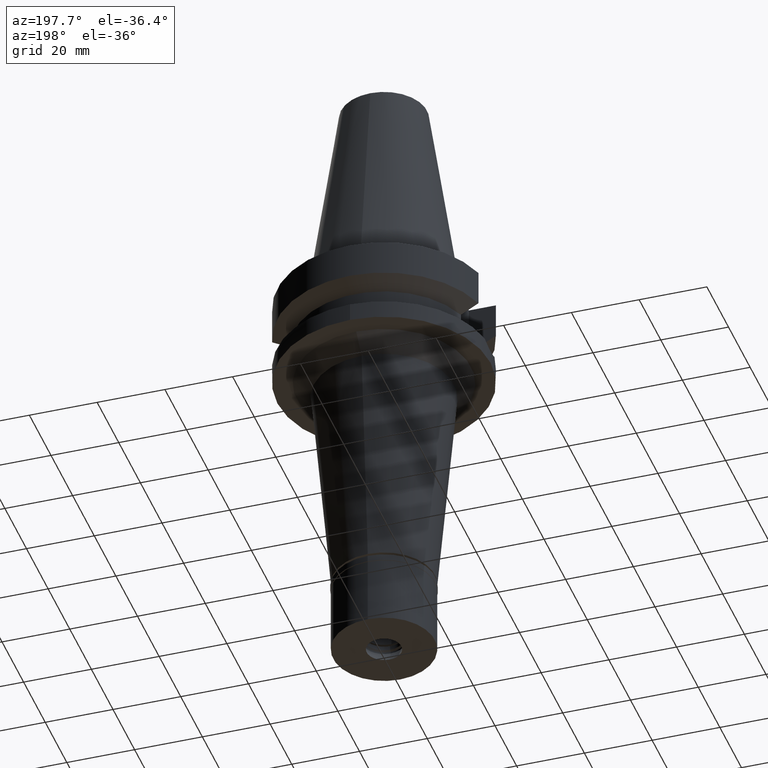
[diagram: clean part render]
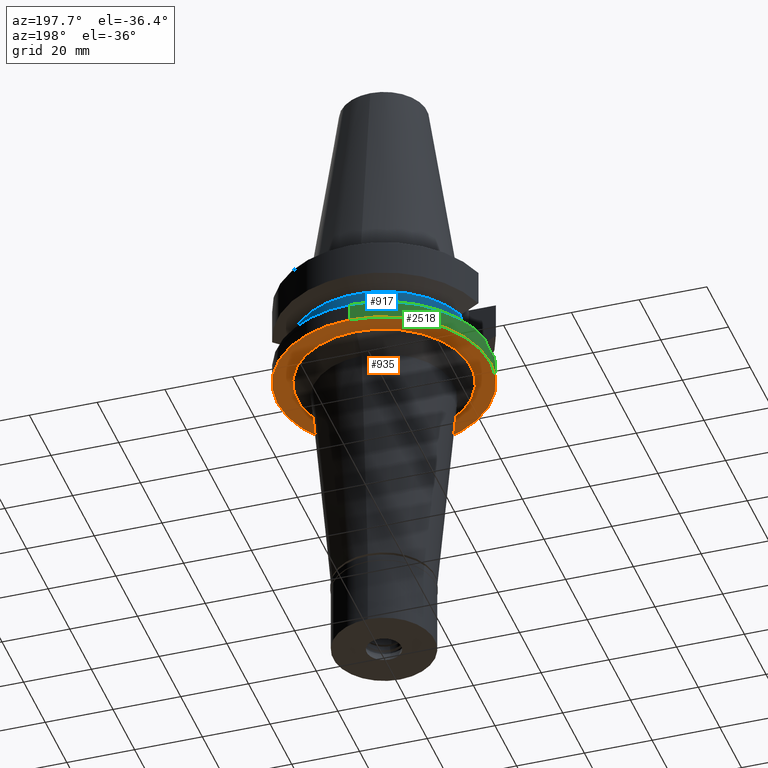
[diagram: same view with three faces highlighted in distinct colors, each labeled with its STEP entity id]
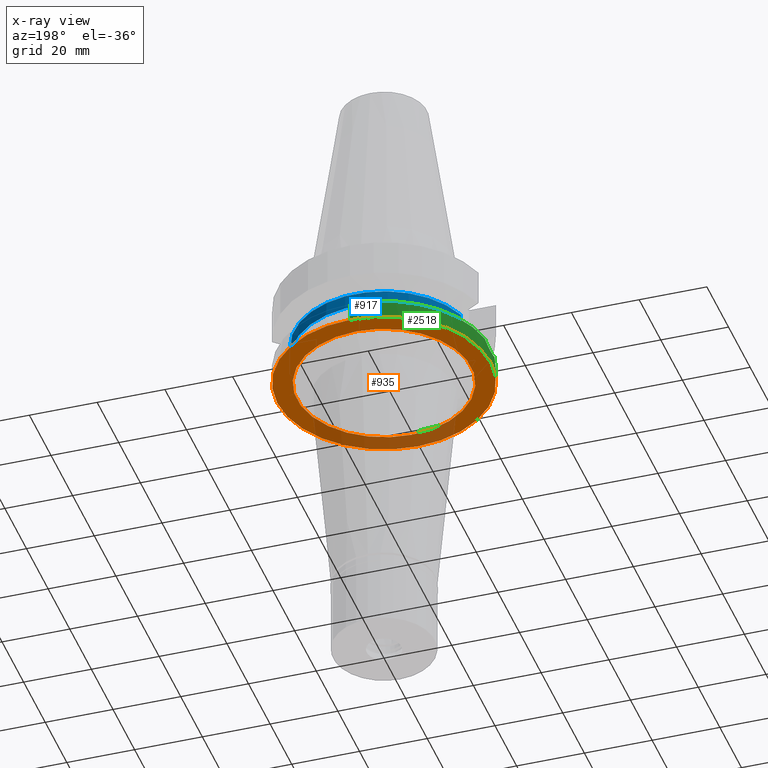
[diagram: x-ray of the same camera — body ghosted, the three highlighted faces saturated]
A machine part, auxiliary view with three faces highlighted in distinct colors.
The next image is the same camera in x-ray (body ghosted, the three faces saturated) — at least one of them is partly hidden behind the body in this view.
Their STEP definitions:

[orange] entity #935 — the highlighted planar face has unit normal (0, 0, -1).
#49 = VERTEX_POINT ( 'NONE', #2967 ) ;
#51 = ORIENTED_EDGE ( 'NONE', *, *, #1243, .F. ) ;
#64 = AXIS2_PLACEMENT_3D ( 'NONE', #2621, #2368, #1883 ) ;
#91 = AXIS2_PLACEMENT_3D ( 'NONE', #1094, #109, #416 ) ;
#109 = DIRECTION ( 'NONE',  ( 0.0000000000000000000, 0.0000000000000000000, -1.000000000000000000 ) ) ;
#158 = DIRECTION ( 'NONE',  ( 0.0000000000000000000, 0.0000000000000000000, -1.000000000000000000 ) ) ;
#287 = AXIS2_PLACEMENT_3D ( 'NONE', #1030, #783, #1747 ) ;
#384 = ORIENTED_EDGE ( 'NONE', *, *, #1934, .F. ) ;
#416 = DIRECTION ( 'NONE',  ( 0.0000000000000000000, -1.000000000000000000, 0.0000000000000000000 ) ) ;
#718 = AXIS2_PLACEMENT_3D ( 'NONE', #2103, #158, #3017 ) ;
#744 = DIRECTION ( 'NONE',  ( 0.0000000000000000000, 0.0000000000000000000, 1.000000000000000000 ) ) ;
#749 = AXIS2_PLACEMENT_3D ( 'NONE', #2394, #744, #938 ) ;
#783 = DIRECTION ( 'NONE',  ( 0.0000000000000000000, 0.0000000000000000000, 1.000000000000000000 ) ) ;
#835 = EDGE_CURVE ( 'NONE', #2689, #2210, #2980, .T. ) ;
#935 = ADVANCED_FACE ( 'NONE', ( #2593, #1598 ), #2784, .T. ) ;
#938 = DIRECTION ( 'NONE',  ( 0.0000000000000000000, -1.000000000000000000, 0.0000000000000000000 ) ) ;
#1006 = CIRCLE ( 'NONE', #749, 31.50000000000000000 ) ;
#1030 = CARTESIAN_POINT ( 'NONE',  ( 0.0000000000000000000, 2.134987997294000229E-14, -27.00000000000000000 ) ) ;
#1056 = CARTESIAN_POINT ( 'NONE',  ( 0.0000000000000000000, -31.50000000000000000, -27.00000000000000000 ) ) ;
#1093 = EDGE_LOOP ( 'NONE', ( #51, #384 ) ) ;
#1094 = CARTESIAN_POINT ( 'NONE',  ( 0.0000000000000000000, 0.0000000000000000000, -27.00000000000000000 ) ) ;
#1243 = EDGE_CURVE ( 'NONE', #49, #1264, #1519, .T. ) ;
#1264 = VERTEX_POINT ( 'NONE', #1056 ) ;
#1519 = CIRCLE ( 'NONE', #287, 31.50000000000000000 ) ;
#1536 = EDGE_LOOP ( 'NONE', ( #2908, #1672 ) ) ;
#1598 = FACE_BOUND ( 'NONE', #1536, .T. ) ;
#1604 = CARTESIAN_POINT ( 'NONE',  ( 0.0000000000000000000, 25.70426086188999903, -27.00000000000000000 ) ) ;
#1628 = EDGE_CURVE ( 'NONE', #2210, #2689, #2363, .T. ) ;
#1672 = ORIENTED_EDGE ( 'NONE', *, *, #1628, .F. ) ;
#1747 = DIRECTION ( 'NONE',  ( 0.0000000000000000000, 1.000000000000000000, 0.0000000000000000000 ) ) ;
#1883 = DIRECTION ( 'NONE',  ( 0.0000000000000000000, -1.000000000000000000, 0.0000000000000000000 ) ) ;
#1934 = EDGE_CURVE ( 'NONE', #1264, #49, #1006, .T. ) ;
#2103 = CARTESIAN_POINT ( 'NONE',  ( 0.0000000000000000000, 0.0000000000000000000, -27.00000000000000000 ) ) ;
#2210 = VERTEX_POINT ( 'NONE', #2952 ) ;
#2363 = CIRCLE ( 'NONE', #64, 25.70426086188999903 ) ;
#2368 = DIRECTION ( 'NONE',  ( 0.0000000000000000000, 0.0000000000000000000, -1.000000000000000000 ) ) ;
#2394 = CARTESIAN_POINT ( 'NONE',  ( 0.0000000000000000000, 2.134987997294000229E-14, -27.00000000000000000 ) ) ;
#2593 = FACE_OUTER_BOUND ( 'NONE', #1093, .T. ) ;
#2621 = CARTESIAN_POINT ( 'NONE',  ( 0.0000000000000000000, 0.0000000000000000000, -27.00000000000000000 ) ) ;
#2689 = VERTEX_POINT ( 'NONE', #1604 ) ;
#2784 = PLANE ( 'NONE',  #91 ) ;
#2908 = ORIENTED_EDGE ( 'NONE', *, *, #835, .F. ) ;
#2952 = CARTESIAN_POINT ( 'NONE',  ( 0.0000000000000000000, -25.70426086188999903, -27.00000000000000000 ) ) ;
#2967 = CARTESIAN_POINT ( 'NONE',  ( 0.0000000000000000000, 31.50000000000000000, -27.00000000000000000 ) ) ;
#2980 = CIRCLE ( 'NONE', #718, 25.70426086188999903 ) ;
#3017 = DIRECTION ( 'NONE',  ( 0.0000000000000000000, 1.000000000000000000, 0.0000000000000000000 ) ) ;

[blue] entity #917 — the highlighted cylindrical surface (partial cylindrical patch) has radius 26.5 mm, axis along (0, 0, -1).
#74 = CARTESIAN_POINT ( 'NONE',  ( 25.48481625424021146, 7.266694416791612099, -18.43220093599513021 ) ) ;
#90 = CARTESIAN_POINT ( 'NONE',  ( -25.36814691286744505, 7.663833599051019796, -17.48802854146694585 ) ) ;
#105 = CARTESIAN_POINT ( 'NONE',  ( -25.31648570732019010, 7.831303109277718555, -16.81376729957127125 ) ) ;
#118 = CIRCLE ( 'NONE', #1995, 26.49999999999998224 ) ;
#132 = CARTESIAN_POINT ( 'NONE',  ( 25.24772413117000269, 8.049995415907000407, -14.45229202706000038 ) ) ;
#220 = EDGE_LOOP ( 'NONE', ( #754, #329, #723, #2628, #2645, #2371 ) ) ;
#329 = ORIENTED_EDGE ( 'NONE', *, *, #1707, .F. ) ;
#333 = CARTESIAN_POINT ( 'NONE',  ( -25.31950825842964292, 7.821518470895145292, -16.85441217854224405 ) ) ;
#335 = CARTESIAN_POINT ( 'NONE',  ( 25.33291921434090810, 7.778007550391908609, -17.02550036344280215 ) ) ;
#353 = CARTESIAN_POINT ( 'NONE',  ( -25.28048322354058541, 7.947042364860029018, -16.24399973117504103 ) ) ;
#385 = DIRECTION ( 'NONE',  ( 0.0000000000000000000, 0.0000000000000000000, -1.000000000000000000 ) ) ;
#492 = VERTEX_POINT ( 'NONE', #2380 ) ;
#664 = DIRECTION ( 'NONE',  ( 0.0000000000000000000, 0.0000000000000000000, -1.000000000000000000 ) ) ;
#689 = CARTESIAN_POINT ( 'NONE',  ( -25.30212858955027144, 7.877670097768182167, -16.61040846295115614 ) ) ;
#723 = ORIENTED_EDGE ( 'NONE', *, *, #2247, .F. ) ;
#754 = ORIENTED_EDGE ( 'NONE', *, *, #923, .T. ) ;
#756 = LINE ( 'NONE', #1762, #1946 ) ;
#831 = CARTESIAN_POINT ( 'NONE',  ( 25.37572268659838670, 7.637742846877074498, -17.49808964569509229 ) ) ;
#839 = VECTOR ( 'NONE', #1789, 1000.000000000000114 ) ;
#917 = ADVANCED_FACE ( 'NONE', ( #1856 ), #1568, .T. ) ;
#923 = EDGE_CURVE ( 'NONE', #2990, #2680, #1122, .T. ) ;
#928 = CARTESIAN_POINT ( 'NONE',  ( -25.24772216385000334, 8.050001586148999522, -14.45224487903000110 ) ) ;
#1014 = DIRECTION ( 'NONE',  ( 0.9634623335000935818, 0.2678438573619981722, 0.0000000000000000000 ) ) ;
#1031 = DIRECTION ( 'NONE',  ( -1.016018801105005834E-06, -3.186605650914018928E-06, -0.9999999999944066964 ) ) ;
#1046 = CARTESIAN_POINT ( 'NONE',  ( 25.24772266958000344, 8.050000000000000711, -15.58995880483253416 ) ) ;
#1076 = CARTESIAN_POINT ( 'NONE',  ( -25.53175183775000079, 7.097862220092999941, -18.74774300138999905 ) ) ;
#1077 = CARTESIAN_POINT ( 'NONE',  ( 25.34387350812916395, 7.742366891133523943, -17.15655251596354347 ) ) ;
#1122 = CIRCLE ( 'NONE', #1625, 26.50000000000000711 ) ;
#1326 = CARTESIAN_POINT ( 'NONE',  ( -25.29452346095225934, 7.902092865018188306, -16.48827265655966201 ) ) ;
#1380 = CARTESIAN_POINT ( 'NONE',  ( -25.24772266957999634, 8.050000000000018474, -15.26991016306199889 ) ) ;
#1530 = EDGE_CURVE ( 'NONE', #2990, #2506, #756, .T. ) ;
#1547 = CARTESIAN_POINT ( 'NONE',  ( -25.25396277509629783, 8.030907860994284775, -15.59359823563988634 ) ) ;
#1565 = CARTESIAN_POINT ( 'NONE',  ( 25.32418608982703745, 7.806352244000168916, -16.91565584311440062 ) ) ;
#1568 = CYLINDRICAL_SURFACE ( 'NONE', #2890, 26.50000000000000000 ) ;
#1571 = EDGE_CURVE ( 'NONE', #2592, #492, #118, .T. ) ;
#1625 = AXIS2_PLACEMENT_3D ( 'NONE', #2829, #664, #2314 ) ;
#1707 = EDGE_CURVE ( 'NONE', #1885, #2680, #2292, .T. ) ;
#1711 = EDGE_CURVE ( 'NONE', #2506, #492, #2648, .T. ) ;
#1735 = CARTESIAN_POINT ( 'NONE',  ( 25.27269031700760493, 7.973298021038417893, -16.24529443267774553 ) ) ;
#1749 = CARTESIAN_POINT ( 'NONE',  ( 25.39163972052291740, 7.584838823494640003, -17.65189279969743552 ) ) ;
#1762 = CARTESIAN_POINT ( 'NONE',  ( -25.24772216385000334, 8.050001586148999522, -14.45224487903000110 ) ) ;
#1776 = CARTESIAN_POINT ( 'NONE',  ( 25.35411236306071814, 7.708864339756916095, -17.26996869603973650 ) ) ;
#1789 = DIRECTION ( 'NONE',  ( 2.936649996080920089E-06, -9.210406386934750857E-06, 0.9999999999532721562 ) ) ;
#1790 = CARTESIAN_POINT ( 'NONE',  ( 25.32549585278761128, 7.802104298500830204, -16.93243209947562988 ) ) ;
#1856 = FACE_OUTER_BOUND ( 'NONE', #220, .T. ) ;
#1885 = VERTEX_POINT ( 'NONE', #2897 ) ;
#1946 = VECTOR ( 'NONE', #1031, 999.9999999999998863 ) ;
#1995 = AXIS2_PLACEMENT_3D ( 'NONE', #2216, #2454, #1014 ) ;
#2031 = CARTESIAN_POINT ( 'NONE',  ( 25.32843688206706290, 7.792560665373273743, -16.96962045696555776 ) ) ;
#2045 = CARTESIAN_POINT ( 'NONE',  ( -25.43786288019223818, 7.435590607933135310, -18.11653926700328654 ) ) ;
#2142 = CARTESIAN_POINT ( 'NONE',  ( -25.27268309164520232, 7.971812745160164582, -16.08115051884209734 ) ) ;
#2216 = CARTESIAN_POINT ( 'NONE',  ( 0.0000000000000000000, 0.0000000000000000000, -18.74774300138999905 ) ) ;
#2232 = CARTESIAN_POINT ( 'NONE',  ( 25.24772266958000344, 8.050000000000000711, -14.94999999999999929 ) ) ;
#2247 = EDGE_CURVE ( 'NONE', #2592, #1885, #2262, .T. ) ;
#2262 = B_SPLINE_CURVE_WITH_KNOTS ( 'NONE', 3,
 ( #2486, #74, #2984, #1749, #831, #1776, #1077, #335, #2031, #1790, #1565, #1735, #1046, #2232 ),
 .UNSPECIFIED., .F., .F.,
 ( 4, 2, 2, 1, 1, 2, 2, 4 ),
 ( 0.0000000000000000000, 0.2499999999999930611, 0.3749999999999896749, 0.4374999999999879541, 0.4687499999999859002, 0.4843749999999861777, 0.4999999999999864553, 1.000000000000000000 ),
 .UNSPECIFIED. ) ;
#2274 = CARTESIAN_POINT ( 'NONE',  ( -25.32118071774149826, 7.816100027251812854, -16.87651110714138625 ) ) ;
#2292 = LINE ( 'NONE', #2781, #839 ) ;
#2295 = CARTESIAN_POINT ( 'NONE',  ( 0.0000000000000000000, 2.134987997294000229E-14, 74.33499999999999375 ) ) ;
#2314 = DIRECTION ( 'NONE',  ( -0.9527442516822307583, 0.3037735849057093818, 0.0000000000000000000 ) ) ;
#2371 = ORIENTED_EDGE ( 'NONE', *, *, #1530, .F. ) ;
#2380 = CARTESIAN_POINT ( 'NONE',  ( -25.53175183775000079, 7.097862220092999941, -18.74774300138999905 ) ) ;
#2454 = DIRECTION ( 'NONE',  ( 0.0000000000000000000, 0.0000000000000000000, 1.000000000000000000 ) ) ;
#2486 = CARTESIAN_POINT ( 'NONE',  ( 25.53175183775000079, 7.097862220092999941, -18.74774300138999905 ) ) ;
#2506 = VERTEX_POINT ( 'NONE', #2907 ) ;
#2511 = CARTESIAN_POINT ( 'NONE',  ( -25.31202500689251877, 7.845732311878355958, -16.75278555882618292 ) ) ;
#2592 = VERTEX_POINT ( 'NONE', #3111 ) ;
#2628 = ORIENTED_EDGE ( 'NONE', *, *, #1571, .T. ) ;
#2645 = ORIENTED_EDGE ( 'NONE', *, *, #1711, .F. ) ;
#2648 = B_SPLINE_CURVE_WITH_KNOTS ( 'NONE', 3,
 ( #2853, #1380, #1547, #2142, #353, #1326, #689, #2511, #105, #333, #2274, #90, #2045, #1076 ),
 .UNSPECIFIED., .F., .F.,
 ( 4, 2, 2, 1, 1, 2, 2, 4 ),
 ( 0.0000000000000000000, 0.2499999999999824030, 0.3749999999999749645, 0.4374999999999711897, 0.4687499999999705791, 0.4843749999999713007, 0.4999999999999720224, 1.000000000000000000 ),
 .UNSPECIFIED. ) ;
#2680 = VERTEX_POINT ( 'NONE', #132 ) ;
#2781 = CARTESIAN_POINT ( 'NONE',  ( 25.24772266958000344, 8.050000000000000711, -14.94999999999999929 ) ) ;
#2829 = CARTESIAN_POINT ( 'NONE',  ( 0.0000000000000000000, 1.065333950388000029E-14, -14.45225699861000024 ) ) ;
#2853 = CARTESIAN_POINT ( 'NONE',  ( -25.24772266958000344, 8.050000000000000711, -14.94999999999999929 ) ) ;
#2890 = AXIS2_PLACEMENT_3D ( 'NONE', #2295, #385, #3033 ) ;
#2897 = CARTESIAN_POINT ( 'NONE',  ( 25.24772266958000344, 8.050000000000000711, -14.94999999999999929 ) ) ;
#2907 = CARTESIAN_POINT ( 'NONE',  ( -25.24772266958000344, 8.050000000000000711, -14.94999999999999929 ) ) ;
#2984 = CARTESIAN_POINT ( 'NONE',  ( 25.44392127699472184, 7.408263445644453604, -18.11704143290260660 ) ) ;
#2990 = VERTEX_POINT ( 'NONE', #928 ) ;
#3033 = DIRECTION ( 'NONE',  ( 0.0000000000000000000, -1.000000000000000000, 0.0000000000000000000 ) ) ;
#3111 = CARTESIAN_POINT ( 'NONE',  ( 25.53175183775000079, 7.097862220092999941, -18.74774300138999905 ) ) ;

[green] entity #2518 — the highlighted cylindrical surface (partial cylindrical patch) has radius 31.5 mm, axis along (0, 0, -1).
#11 = CARTESIAN_POINT ( 'NONE',  ( -31.36242476482015817, -3.016548684969623917, -22.44626900665777214 ) ) ;
#49 = VERTEX_POINT ( 'NONE', #2967 ) ;
#147 = LINE ( 'NONE', #1413, #1717 ) ;
#243 = DIRECTION ( 'NONE',  ( 0.0000000000000000000, 0.0000000000000000000, -1.000000000000000000 ) ) ;
#271 = LINE ( 'NONE', #2704, #2916 ) ;
#277 = ORIENTED_EDGE ( 'NONE', *, *, #1608, .F. ) ;
#283 = AXIS2_PLACEMENT_3D ( 'NONE', #1476, #243, #1443 ) ;
#287 = AXIS2_PLACEMENT_3D ( 'NONE', #1030, #783, #1747 ) ;
#305 = CARTESIAN_POINT ( 'NONE',  ( -31.41215830074744275, 2.351096289896226210, -22.64905788739100956 ) ) ;
#340 = EDGE_CURVE ( 'NONE', #3020, #49, #147, .T. ) ;
#365 = CARTESIAN_POINT ( 'NONE',  ( -31.17899877608999759, -4.485536235554000051, -21.63449434733000132 ) ) ;
#502 = CIRCLE ( 'NONE', #660, 31.50000000000001421 ) ;
#512 = CARTESIAN_POINT ( 'NONE',  ( -31.49245606944948150, -0.7860991982188146876, -22.97124303091316833 ) ) ;
#541 = CARTESIAN_POINT ( 'NONE',  ( -31.40255557127900943, 2.476306052361311849, -22.60989025223449289 ) ) ;
#556 = CARTESIAN_POINT ( 'NONE',  ( -31.27846961443085760, 3.743983546181790967, -22.08754853576791533 ) ) ;
#620 = ORIENTED_EDGE ( 'NONE', *, *, #2070, .T. ) ;
#660 = AXIS2_PLACEMENT_3D ( 'NONE', #1281, #1327, #2244 ) ;
#710 = CYLINDRICAL_SURFACE ( 'NONE', #1546, 31.50000000000000000 ) ;
#739 = DIRECTION ( 'NONE',  ( 0.0000000000000000000, -1.000000000000000000, 0.0000000000000000000 ) ) ;
#783 = DIRECTION ( 'NONE',  ( 0.0000000000000000000, 0.0000000000000000000, 1.000000000000000000 ) ) ;
#785 = CARTESIAN_POINT ( 'NONE',  ( 0.0000000000000000000, -31.50000000000000000, -21.63449434733000132 ) ) ;
#798 = CARTESIAN_POINT ( 'NONE',  ( -31.41073716363077040, 2.369955556986148348, -22.64326362460410991 ) ) ;
#1001 = CARTESIAN_POINT ( 'NONE',  ( -31.47164681449472212, 1.548077469603948542, -22.89150997831990964 ) ) ;
#1030 = CARTESIAN_POINT ( 'NONE',  ( 0.0000000000000000000, 2.134987997294000229E-14, -27.00000000000000000 ) ) ;
#1056 = CARTESIAN_POINT ( 'NONE',  ( 0.0000000000000000000, -31.50000000000000000, -27.00000000000000000 ) ) ;
#1057 = CARTESIAN_POINT ( 'NONE',  ( -31.49983371806498056, -0.3969849275423130708, -22.99934650678998338 ) ) ;
#1113 = DIRECTION ( 'NONE',  ( 0.0000000000000000000, 1.099151708819000049E-13, -1.000000000000000000 ) ) ;
#1237 = CARTESIAN_POINT ( 'NONE',  ( -31.41408065394639237, -2.325228041220380959, -22.65689912745741452 ) ) ;
#1243 = EDGE_CURVE ( 'NONE', #49, #1264, #1519, .T. ) ;
#1264 = VERTEX_POINT ( 'NONE', #1056 ) ;
#1266 = CARTESIAN_POINT ( 'NONE',  ( -31.33719342387539086, 3.200318897670429763, -22.33920407938799002 ) ) ;
#1280 = CARTESIAN_POINT ( 'NONE',  ( -31.43626029286638612, -2.006672135009983204, -22.74702249194592696 ) ) ;
#1281 = CARTESIAN_POINT ( 'NONE',  ( 0.0000000000000000000, 0.0000000000000000000, -21.63449434733000132 ) ) ;
#1288 = VERTEX_POINT ( 'NONE', #365 ) ;
#1327 = DIRECTION ( 'NONE',  ( 0.0000000000000000000, 0.0000000000000000000, -1.000000000000000000 ) ) ;
#1328 = ORIENTED_EDGE ( 'NONE', *, *, #2268, .T. ) ;
#1346 = CARTESIAN_POINT ( 'NONE',  ( -31.17899877608999759, 4.485536235554000051, -21.63449434733000132 ) ) ;
#1413 = CARTESIAN_POINT ( 'NONE',  ( 0.0000000000000000000, 31.50000000000000000, -21.63449434733000132 ) ) ;
#1425 = DIRECTION ( 'NONE',  ( 0.0000000000000000000, 0.0000000000000000000, -1.000000000000000000 ) ) ;
#1438 = ORIENTED_EDGE ( 'NONE', *, *, #1243, .T. ) ;
#1443 = DIRECTION ( 'NONE',  ( 0.0000000000000000000, -1.000000000000000000, 0.0000000000000000000 ) ) ;
#1476 = CARTESIAN_POINT ( 'NONE',  ( 0.0000000000000000000, 0.0000000000000000000, -21.63449434733000132 ) ) ;
#1487 = CARTESIAN_POINT ( 'NONE',  ( -31.47056816806593460, -1.371798205037735974, -22.88470967410014367 ) ) ;
#1515 = CARTESIAN_POINT ( 'NONE',  ( -31.50032380699094148, 0.7535289836077881942, -23.00127312585622263 ) ) ;
#1519 = CIRCLE ( 'NONE', #287, 31.50000000000000000 ) ;
#1531 = CARTESIAN_POINT ( 'NONE',  ( -31.42474741543223260, -2.177058571073353210, -22.70031563427412635 ) ) ;
#1535 = EDGE_CURVE ( 'NONE', #1581, #1264, #271, .T. ) ;
#1546 = AXIS2_PLACEMENT_3D ( 'NONE', #2183, #1425, #739 ) ;
#1581 = VERTEX_POINT ( 'NONE', #785 ) ;
#1608 = EDGE_CURVE ( 'NONE', #3041, #1288, #1956, .T. ) ;
#1717 = VECTOR ( 'NONE', #1113, 1000.000000000000000 ) ;
#1747 = DIRECTION ( 'NONE',  ( 0.0000000000000000000, 1.000000000000000000, 0.0000000000000000000 ) ) ;
#1799 = ORIENTED_EDGE ( 'NONE', *, *, #1535, .F. ) ;
#1952 = CARTESIAN_POINT ( 'NONE',  ( -31.28458591552585943, -3.751599172477773525, -22.12699252595170307 ) ) ;
#1956 = B_SPLINE_CURVE_WITH_KNOTS ( 'NONE', 3,
 ( #2199, #2965, #556, #1266, #2719, #2258, #2691, #541, #2675, #798, #305, #1001, #1515, #1057, #512, #1487, #2734, #2483, #1280, #1531, #2495, #2013, #1237, #11, #1952, #2925 ),
 .UNSPECIFIED., .F., .F.,
 ( 4, 2, 2, 1, 1, 2, 2, 2, 2, 2, 1, 1, 2, 2, 4 ),
 ( 0.0000000000000000000, 0.1250000000000035527, 0.1875000000000049960, 0.2187500000000057176, 0.2343750000000058287, 0.2421875000000056899, 0.2500000000000055511, 0.5000000000000049960, 0.6250000000000047740, 0.6875000000000046629, 0.7187500000000044409, 0.7343750000000042188, 0.7421875000000042188, 0.7500000000000042188, 1.000000000000000000 ),
 .UNSPECIFIED. ) ;
#2013 = CARTESIAN_POINT ( 'NONE',  ( -31.41604485789485679, -2.298564670171074908, -22.66490387661687222 ) ) ;
#2070 = EDGE_CURVE ( 'NONE', #1581, #1288, #3018, .T. ) ;
#2183 = CARTESIAN_POINT ( 'NONE',  ( 0.0000000000000000000, 2.134987997294000229E-14, 74.33499999999999375 ) ) ;
#2199 = CARTESIAN_POINT ( 'NONE',  ( -31.17899877608999759, 4.485536235554000051, -21.63449434733000132 ) ) ;
#2244 = DIRECTION ( 'NONE',  ( -0.9898094849552905306, 0.1423979757318985240, 0.0000000000000000000 ) ) ;
#2258 = CARTESIAN_POINT ( 'NONE',  ( -31.37907245649647336, 2.757363126091229688, -22.51361630133225233 ) ) ;
#2268 = EDGE_CURVE ( 'NONE', #3041, #3020, #502, .T. ) ;
#2375 = ORIENTED_EDGE ( 'NONE', *, *, #340, .T. ) ;
#2483 = CARTESIAN_POINT ( 'NONE',  ( -31.44511396460612218, -1.860301245813810400, -22.78273863314811010 ) ) ;
#2495 = CARTESIAN_POINT ( 'NONE',  ( -31.41955969787373704, -2.249977568489424318, -22.67921356346758799 ) ) ;
#2518 = ADVANCED_FACE ( 'NONE', ( #2523 ), #710, .T. ) ;
#2523 = FACE_OUTER_BOUND ( 'NONE', #2922, .T. ) ;
#2675 = CARTESIAN_POINT ( 'NONE',  ( -31.40749760860530415, 2.412424580018508458, -22.63005222543889516 ) ) ;
#2691 = CARTESIAN_POINT ( 'NONE',  ( -31.39044521733446658, 2.626578571217958569, -22.56039104643009807 ) ) ;
#2704 = CARTESIAN_POINT ( 'NONE',  ( 0.0000000000000000000, -31.50000000000000000, -21.63449434733000132 ) ) ;
#2719 = CARTESIAN_POINT ( 'NONE',  ( -31.35500365821123481, 3.021264144827775944, -22.41390211744528571 ) ) ;
#2734 = CARTESIAN_POINT ( 'NONE',  ( -31.46146862952802792, -1.567358629207376453, -22.84847756273314445 ) ) ;
#2916 = VECTOR ( 'NONE', #2951, 1000.000000000000000 ) ;
#2922 = EDGE_LOOP ( 'NONE', ( #1328, #2375, #1438, #1799, #620, #277 ) ) ;
#2925 = CARTESIAN_POINT ( 'NONE',  ( -31.17899877608999759, -4.485536235554000051, -21.63449434733000132 ) ) ;
#2951 = DIRECTION ( 'NONE',  ( 0.0000000000000000000, -1.105773104655000034E-13, -1.000000000000000000 ) ) ;
#2965 = CARTESIAN_POINT ( 'NONE',  ( -31.23226293288512423, 4.115296649410968399, -21.88293843198499289 ) ) ;
#2967 = CARTESIAN_POINT ( 'NONE',  ( 0.0000000000000000000, 31.50000000000000000, -27.00000000000000000 ) ) ;
#3018 = CIRCLE ( 'NONE', #283, 31.50000000000000000 ) ;
#3020 = VERTEX_POINT ( 'NONE', #3036 ) ;
#3036 = CARTESIAN_POINT ( 'NONE',  ( 0.0000000000000000000, 31.50000000000000000, -21.63449434733000132 ) ) ;
#3041 = VERTEX_POINT ( 'NONE', #1346 ) ;